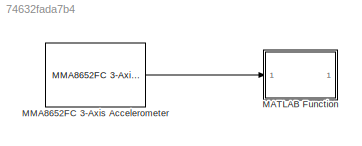
MODEL slx_74632fada7b4
KIND model
CONFIG AbsTol = auto
CONFIG EnableMultiTasking = off
CONFIG FixedStep = auto
CONFIG MaxStep = auto
CONFIG MinStep = auto
CONFIG RelTol = 1e-3
CONFIG SampleTimeConstraint = Unconstrained
CONFIG SolverName = VariableStepAuto
CONFIG StartTime = 0.0
CONFIG StopTime = 10.0
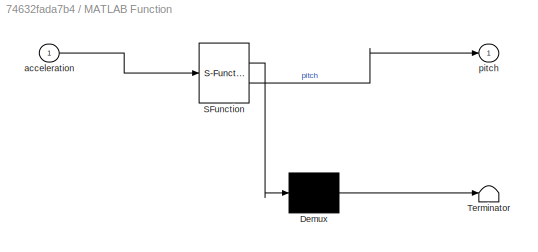
BLOCK [SubSystem] MATLAB Function
  ErrorFcn = Stateflow.Translate.translate
  PermitHierarchicalResolution = ExplicitOnly
  Ports = [1, 1]
  RequestExecContextInheritance = off
  SFBlockType = MATLAB Function
  TreatAsAtomicUnit = on
BLOCK [Demux] MATLAB Function/ Demux 
  Outputs = 1
  Ports = [1, 1]
BLOCK [S-Function] MATLAB Function/ SFunction 
  EnableBusSupport = off
  FunctionName = sf_sfun
  PortCounts = [1 2]
  Ports = [1, 2]
  SFcnIsStateOwnerBlock = off
  SFunctionDeploymentMode = off
  Tag = Stateflow S-Function 2
BLOCK [Terminator] MATLAB Function/ Terminator 
BLOCK [Inport] MATLAB Function/acceleration
BLOCK [Outport] MATLAB Function/pitch
BLOCK [Reference] MMA8652FC 3-Axis Accelerometer  REF=microbitaccellib/MMA8652FC 3-Axis
Accelerometer
  Ports = [0, 1]
  SourceBlock = microbitaccellib/MMA8652FC 3-Axis\nAccelerometer
  SourceProductBaseCode = MICROBIT
  SourceType = microbit.mma8652
LINE MMA8652FC 3-Axis Accelerometer:1 -> MATLAB Function:1
CHART MATLAB Function states=1 transitions=1
  STATE_LABEL 'eML_blk_kernel()'
  STATE_LABEL 'SCRIPT:\nfunction pitch =convertToPitch (acceleration) \n\nacceleration_x=acceleration(1);\nacceleration_y=acceleration(2);\nacceleration_z=acceleration(3);\n\npitch= atand(acceleration_x/sqrt(acceleration_y^2+acceleration_z^2)); \n\nend \n\n'
CHART  states=0 transitions=0
